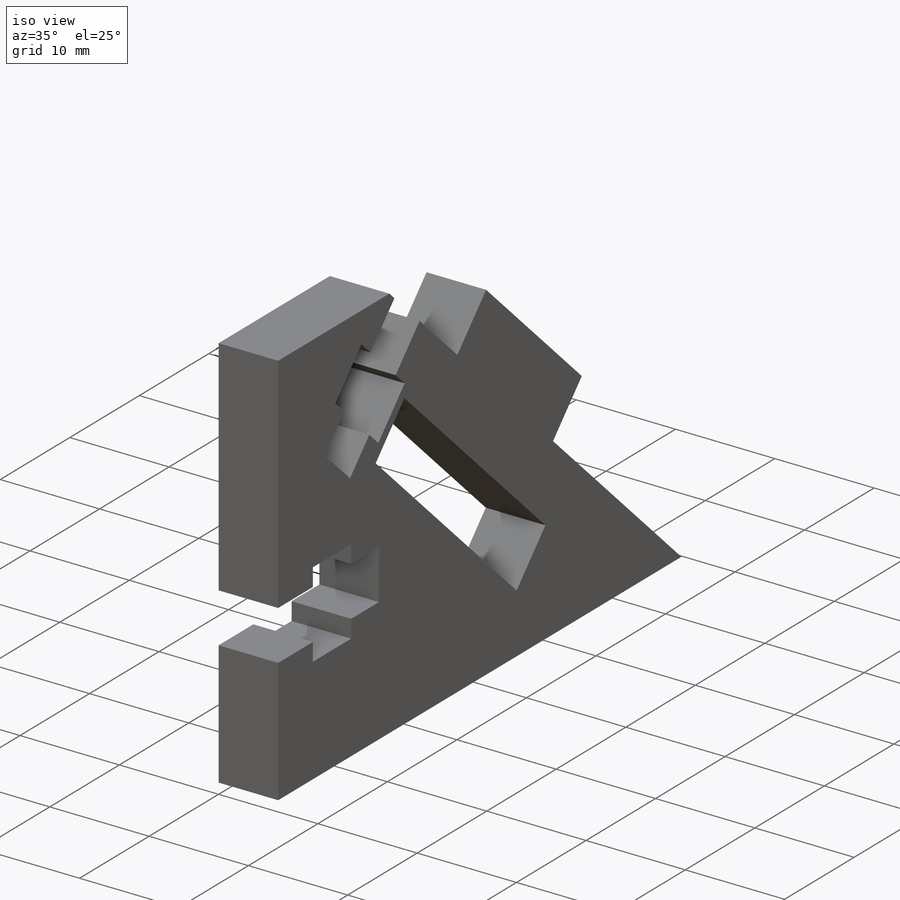
[diagram: iso view]
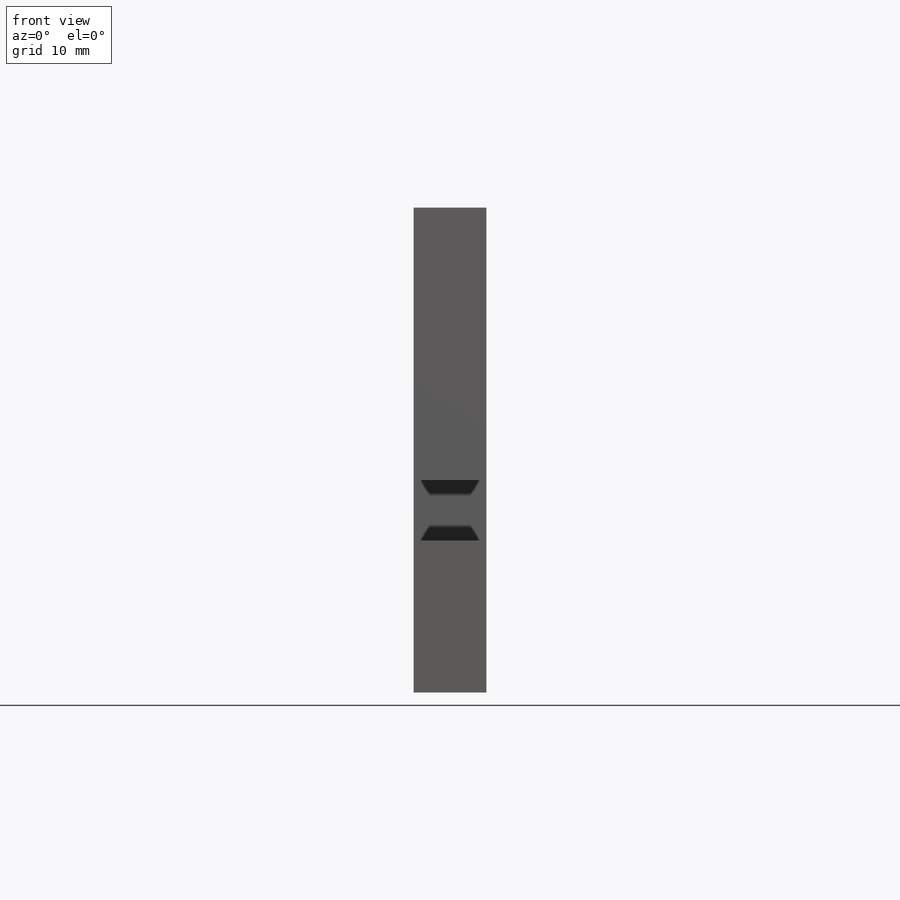
[diagram: front view]
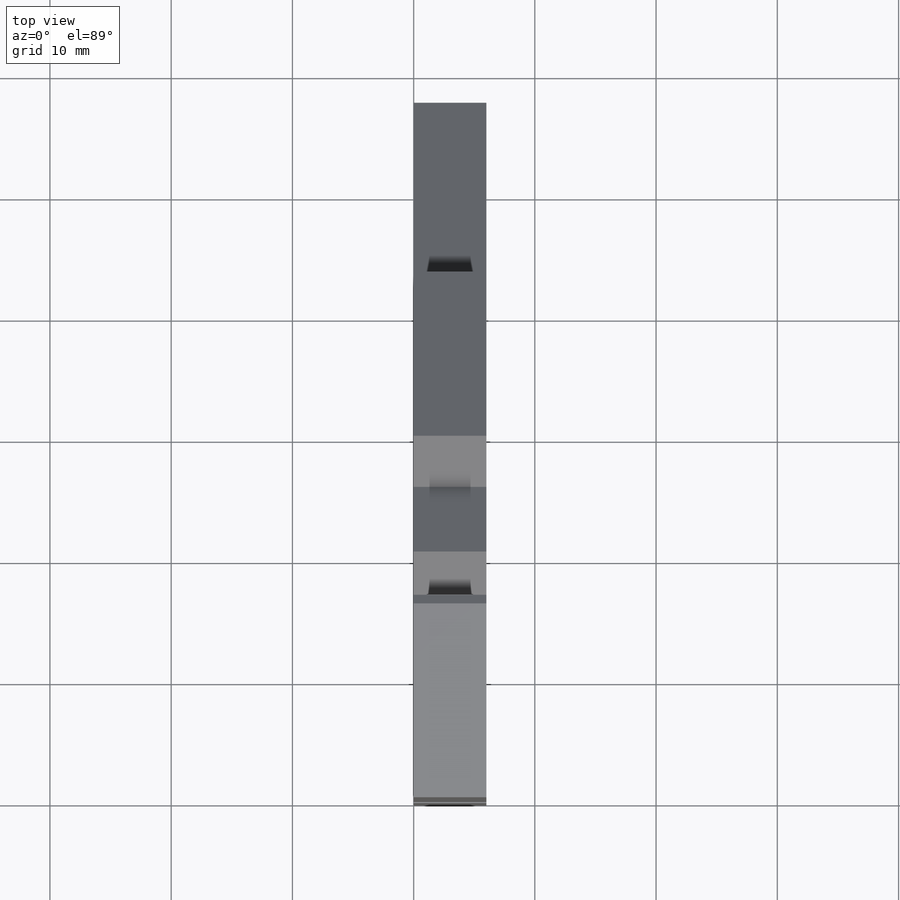
[diagram: top view]
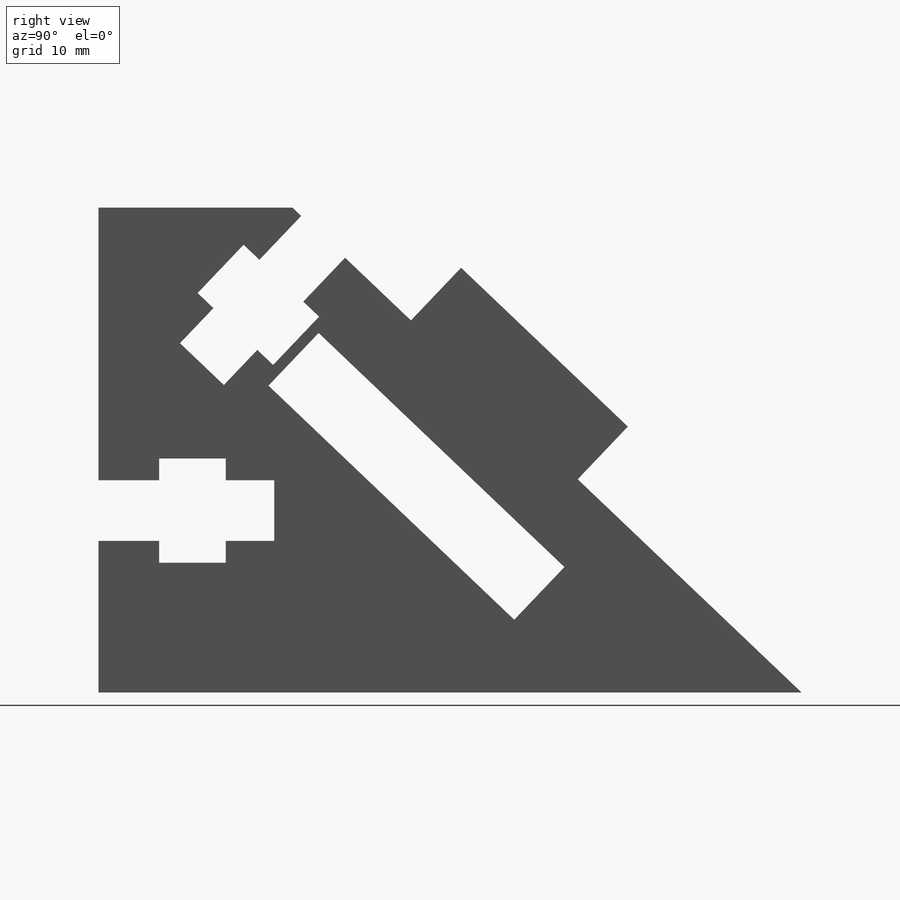
[diagram: right view]
SOLIDWORKS PART (.sldprt)
format: sldprt  version: not decoded by parser v0  size: 364,032 bytes
history: native  units: mm
features: plane x3, sketch x3, extrude x2, cut_extrude x2, material x1 (+10 scaffold rows collapsed)
feature tree (21):
  scaffold x10  (default folders/planes/origin — collapsed)
  material  "Matériau <non spécifié>"
  plane  "Plan de face"
  plane  "Plan de dessus"
  plane  "Plan de droite"
  sketch  "Esquisse1"  dims[D1=40.0mm D2=16.0mm D3=58.0mm D4=13.5mm D5=19.0mm D6=6.0mm]
  extrude  "Boss.-Extru.1"  Depth=6mm
  sketch  "Esquisse2"  dims[D7=1.0mm D1=5.0mm D2=5.0mm D3=5.5mm D4=1.8mm D5=4.0mm D6=2.5mm]
  extrude  "attache_male-2"  Depth=15mm
  cut_extrude  "Enlèv. mat.-Extru.1"  Depth=6mm
  sketch  "Esquisse3"  dims[D1=6.0mm D2=28.0mm D3=6.0mm D4=6.0mm]
  cut_extrude  "Enlèv. mat.-Extru.2"  Depth=6mm
decode coverage: 7 of 7 modeling features carry decoded parameters
note: suppression state not decoded; provenance and decode notes live in map.json
